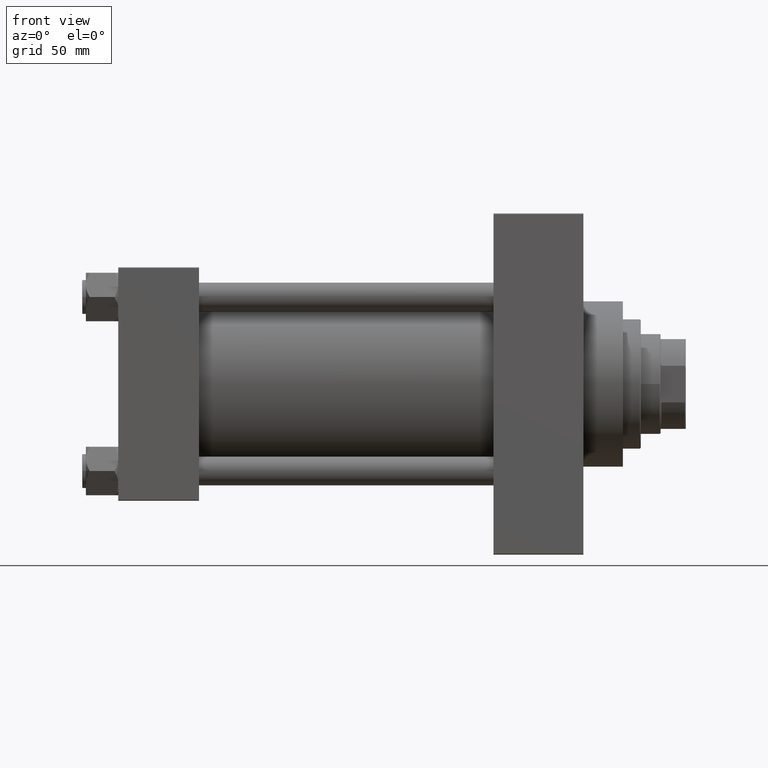
[diagram: clean part render]
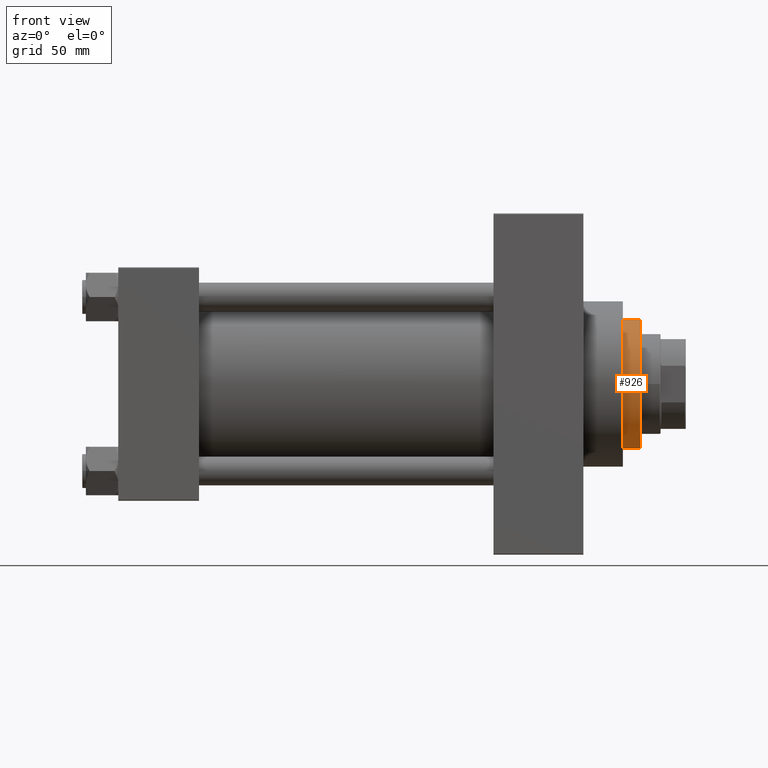
[diagram: same view with one face highlighted and labeled with its STEP entity id]
A machine part, front view. The second image highlights one B-rep face of the part: STEP entity #926.
In plain terms, the highlighted cylindrical surface (partial cylindrical patch) has radius 36 mm, axis along (-1, 0, 0).
Its self-contained STEP definition (entity closure, byte-faithful):
#926 = ADVANCED_FACE ( 'NONE', ( #11571 ), #41499, .T. ) ;
#2331 = EDGE_LOOP ( 'NONE', ( #45130, #10402, #21128, #47243 ) ) ;
#2989 = DIRECTION ( 'NONE',  ( 1.000000000000000000, 0.000000000000000000, 0.000000000000000000 ) ) ;
#3267 = CARTESIAN_POINT ( 'NONE',  ( 36.00000000000000000, 4.408728476930470856E-15, 52.76000000000001933 ) ) ;
#3609 = DIRECTION ( 'NONE',  ( -1.000000000000000000, 0.000000000000000000, 0.000000000000000000 ) ) ;
#5539 = VERTEX_POINT ( 'NONE', #22467 ) ;
#5722 = DIRECTION ( 'NONE',  ( 1.000000000000000000, 0.000000000000000000, 0.000000000000000000 ) ) ;
#6664 = CIRCLE ( 'NONE', #27485, 36.00000000000000000 ) ;
#6687 = CARTESIAN_POINT ( 'NONE',  ( 36.00000000000000000, 4.408728476930470856E-15, 53.26000000000000512 ) ) ;
#6947 = EDGE_CURVE ( 'NONE', #35932, #23269, #6664, .T. ) ;
#7072 = DIRECTION ( 'NONE',  ( 0.000000000000000000, 0.000000000000000000, 1.000000000000000000 ) ) ;
#8221 = EDGE_CURVE ( 'NONE', #8756, #5539, #10554, .T. ) ;
#8420 = CARTESIAN_POINT ( 'NONE',  ( 0.000000000000000000, 0.000000000000000000, 53.26000000000000512 ) ) ;
#8562 = DIRECTION ( 'NONE',  ( -0.000000000000000000, -0.000000000000000000, -1.000000000000000000 ) ) ;
#8756 = VERTEX_POINT ( 'NONE', #16651 ) ;
#10402 = ORIENTED_EDGE ( 'NONE', *, *, #40195, .T. ) ;
#10554 = CIRCLE ( 'NONE', #26766, 36.00000000000000000 ) ;
#11571 = FACE_OUTER_BOUND ( 'NONE', #2331, .T. ) ;
#14166 = DIRECTION ( 'NONE',  ( -0.000000000000000000, -0.000000000000000000, -1.000000000000000000 ) ) ;
#14862 = EDGE_CURVE ( 'NONE', #35932, #5539, #33441, .T. ) ;
#15729 = AXIS2_PLACEMENT_3D ( 'NONE', #8420, #23166, #3609 ) ;
#16651 = CARTESIAN_POINT ( 'NONE',  ( 36.00000000000000000, 4.408728476930470856E-15, 43.25999999999999801 ) ) ;
#17188 = VECTOR ( 'NONE', #14166, 1000.000000000000000 ) ;
#20542 = LINE ( 'NONE', #6687, #17188 ) ;
#21128 = ORIENTED_EDGE ( 'NONE', *, *, #8221, .T. ) ;
#22213 = CARTESIAN_POINT ( 'NONE',  ( -36.00000000000000000, 0.000000000000000000, 52.76000000000001933 ) ) ;
#22467 = CARTESIAN_POINT ( 'NONE',  ( -36.00000000000000000, 0.000000000000000000, 43.25999999999999801 ) ) ;
#23166 = DIRECTION ( 'NONE',  ( -0.000000000000000000, -0.000000000000000000, -1.000000000000000000 ) ) ;
#23269 = VERTEX_POINT ( 'NONE', #3267 ) ;
#26766 = AXIS2_PLACEMENT_3D ( 'NONE', #32675, #7072, #2989 ) ;
#27485 = AXIS2_PLACEMENT_3D ( 'NONE', #27701, #46293, #5722 ) ;
#27701 = CARTESIAN_POINT ( 'NONE',  ( 0.000000000000000000, 0.000000000000000000, 52.76000000000001933 ) ) ;
#29583 = CARTESIAN_POINT ( 'NONE',  ( -36.00000000000000000, 0.000000000000000000, 53.26000000000000512 ) ) ;
#32675 = CARTESIAN_POINT ( 'NONE',  ( 0.000000000000000000, 0.000000000000000000, 43.25999999999999801 ) ) ;
#33441 = LINE ( 'NONE', #29583, #33853 ) ;
#33853 = VECTOR ( 'NONE', #8562, 1000.000000000000000 ) ;
#35932 = VERTEX_POINT ( 'NONE', #22213 ) ;
#40195 = EDGE_CURVE ( 'NONE', #23269, #8756, #20542, .T. ) ;
#41499 = CYLINDRICAL_SURFACE ( 'NONE', #15729, 36.00000000000000000 ) ;
#45130 = ORIENTED_EDGE ( 'NONE', *, *, #6947, .T. ) ;
#46293 = DIRECTION ( 'NONE',  ( 0.000000000000000000, 0.000000000000000000, -1.000000000000000000 ) ) ;
#47243 = ORIENTED_EDGE ( 'NONE', *, *, #14862, .F. ) ;